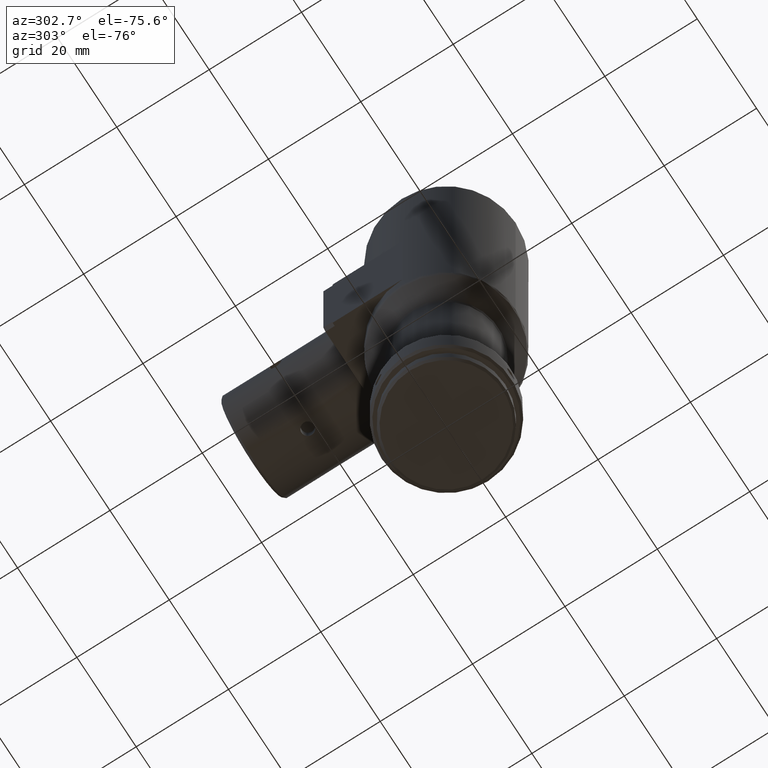
[diagram: clean part render]
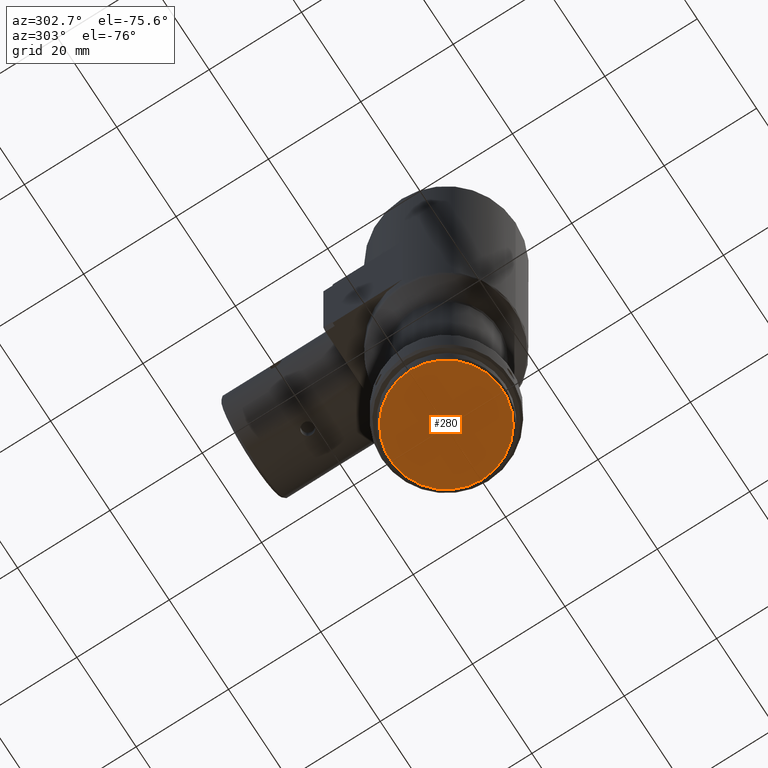
[diagram: same view with one face highlighted and labeled with its STEP entity id]
A machine part, auxiliary view. The second image highlights one B-rep face of the part: STEP entity #280.
In plain terms, the highlighted planar face has unit normal (0, 0, 1).
Its self-contained STEP definition (entity closure, byte-faithful):
#192 = DIRECTION ( 'NONE',  ( 0.000000000000000000, 0.000000000000000000, 1.000000000000000000 ) ) ;
#226 = EDGE_LOOP ( 'NONE', ( #2304 ) ) ;
#280 = ADVANCED_FACE ( 'NONE', ( #945 ), #298, .F. ) ;
#298 = PLANE ( 'NONE',  #1687 ) ;
#909 = DIRECTION ( 'NONE',  ( 0.000000000000000000, -1.000000000000000000, 1.526556658859590243E-16 ) ) ;
#945 = FACE_OUTER_BOUND ( 'NONE', #226, .T. ) ;
#1199 = EDGE_CURVE ( 'NONE', #1534, #1534, #2275, .T. ) ;
#1454 = DIRECTION ( 'NONE',  ( 1.000000000000000000, 0.000000000000000000, 0.000000000000000000 ) ) ;
#1534 = VERTEX_POINT ( 'NONE', #3960 ) ;
#1687 = AXIS2_PLACEMENT_3D ( 'NONE', #2541, #1928, #909 ) ;
#1928 = DIRECTION ( 'NONE',  ( 5.184486260647289036E-17, 1.526556658859590243E-16, 1.000000000000000000 ) ) ;
#2275 = CIRCLE ( 'NONE', #2801, 12.20000000000000284 ) ;
#2304 = ORIENTED_EDGE ( 'NONE', *, *, #1199, .F. ) ;
#2541 = CARTESIAN_POINT ( 'NONE',  ( 1.193787676028428144E-29, 11.00000060536505764, -179.6645019999999988 ) ) ;
#2801 = AXIS2_PLACEMENT_3D ( 'NONE', #2962, #192, #1454 ) ;
#2962 = CARTESIAN_POINT ( 'NONE',  ( 0.000000000000000000, 6.053650583316121746E-07, -179.6645019999999988 ) ) ;
#3960 = CARTESIAN_POINT ( 'NONE',  ( 12.20000000000000284, 6.053650583316121746E-07, -179.6645019999999988 ) ) ;